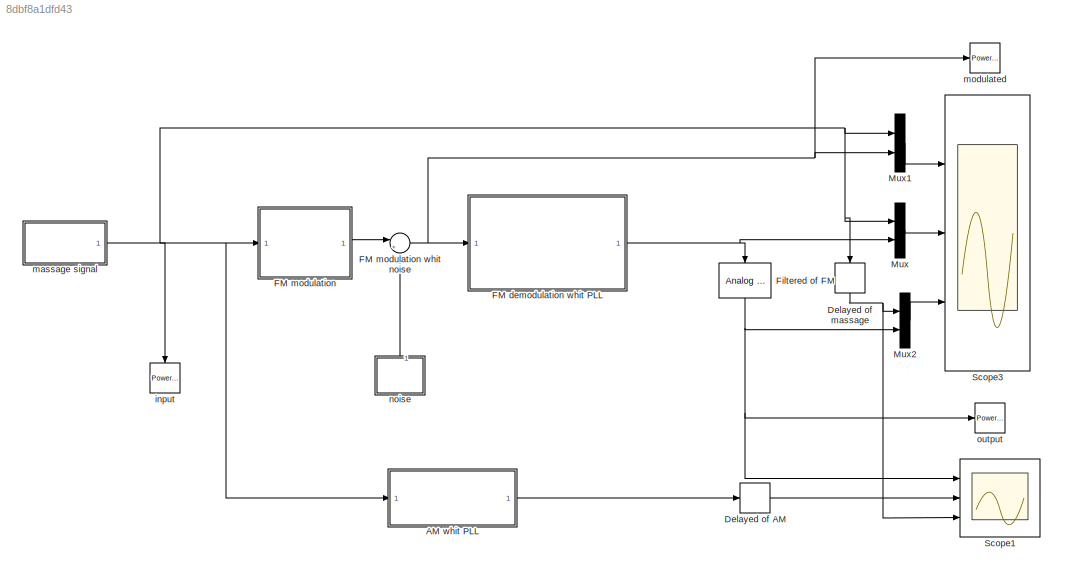
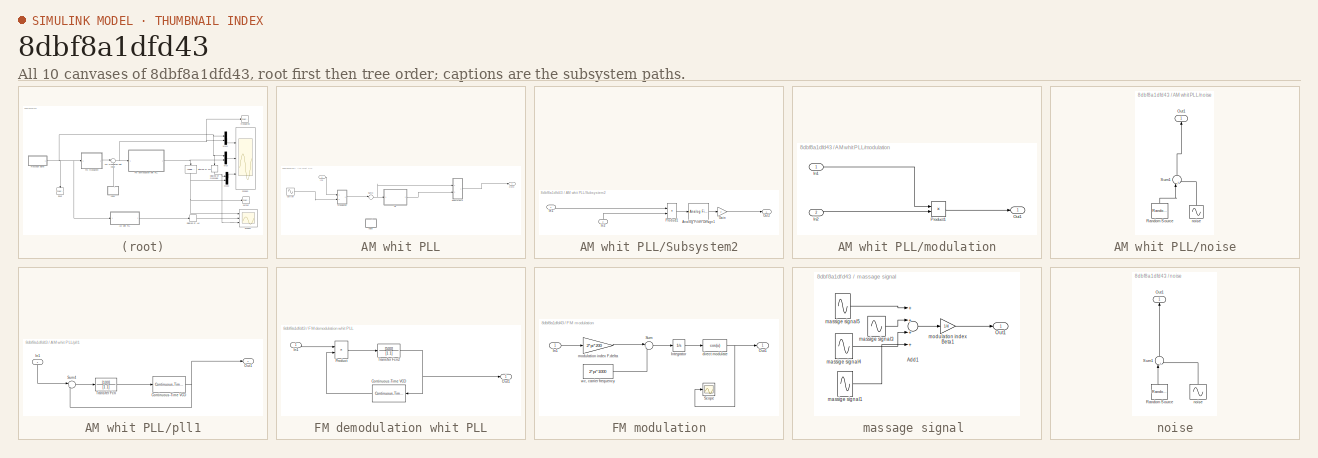
[diagram: thumbnail index - all 10 canvases of the model, root first then tree order]
MODEL slx_8dbf8a1dfd43
KIND model
CONFIG AbsTol = auto
CONFIG EnableMultiTasking = on
CONFIG FixedStep = .0002
CONFIG MaxStep = 0.00005
CONFIG MinStep = auto
CONFIG RelTol = 1e-4
CONFIG SampleTimeConstraint = Unconstrained
CONFIG Solver = VariableStepAuto
CONFIG SolverName = VariableStepAuto
CONFIG StartTime = 0.0
CONFIG StopTime = inf
BLOCK [Reference]  Filtered of FM  REF=dsparch4/Analog
Filter Design
  Ports = [1, 1]
  SourceBlock = dsparch4/Analog\nFilter Design
  SourceType = Analog Filter Design
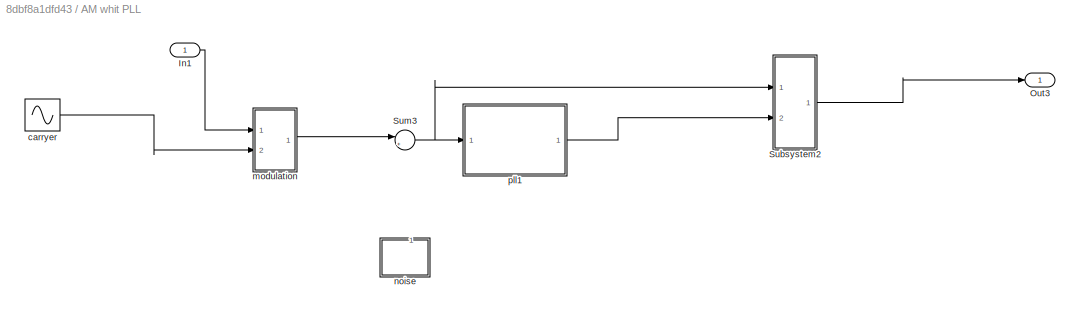
BLOCK [SubSystem] AM whit PLL
  Ports = [1, 1]
  RequestExecContextInheritance = off
  Variant = off
BLOCK [Inport] AM whit PLL/In1
  IconDisplay = Port number
BLOCK [Outport] AM whit PLL/Out3
  IconDisplay = Port number
BLOCK [SubSystem] AM whit PLL/Subsystem2
  Ports = [2, 1]
  RequestExecContextInheritance = off
  Variant = off
BLOCK [Reference] AM whit PLL/Subsystem2/Analog Filter Design1  REF=dsparch4/Analog
Filter Design
  Ports = [1, 1]
  SourceBlock = dsparch4/Analog\nFilter Design
  SourceType = Analog Filter Design
BLOCK [Gain] AM whit PLL/Subsystem2/Gain
  Gain = 2
  OutDataTypeStr = Inherit: Inherit via internal rule
  ParamDataTypeStr = Inherit: Inherit via internal rule
  SaturateOnIntegerOverflow = off
BLOCK [Inport] AM whit PLL/Subsystem2/In1
  IconDisplay = Port number
BLOCK [Inport] AM whit PLL/Subsystem2/In2
  IconDisplay = Port number
  Port = 2
BLOCK [Outport] AM whit PLL/Subsystem2/Out2
  IconDisplay = Port number
BLOCK [Product] AM whit PLL/Subsystem2/Product1
  InputSameDT = off
  OutDataTypeStr = Inherit: Inherit via internal rule
  Ports = [2, 1]
  RndMeth = Floor
  SaturateOnIntegerOverflow = off
BLOCK [Sum] AM whit PLL/Sum3
  IconShape = round
  InputSameDT = off
  Inputs = |++
  OutDataTypeStr = Inherit: Inherit via internal rule
  Ports = [2, 1]
  SaturateOnIntegerOverflow = off
BLOCK [Sin] AM whit PLL/carryer
  Frequency = 1000*2*pi
  Ports = [0, 1]
  SampleTime = 0
BLOCK [SubSystem] AM whit PLL/modulation
  Ports = [2, 1]
  RequestExecContextInheritance = off
  Variant = off
BLOCK [Inport] AM whit PLL/modulation/In1
  IconDisplay = Port number
BLOCK [Inport] AM whit PLL/modulation/In2
  IconDisplay = Port number
  Port = 2
BLOCK [Outport] AM whit PLL/modulation/Out1
  IconDisplay = Port number
BLOCK [Product] AM whit PLL/modulation/Product1
  InputSameDT = off
  OutDataTypeStr = Inherit: Inherit via internal rule
  Ports = [2, 1]
  RndMeth = Floor
  SaturateOnIntegerOverflow = off
BLOCK [SubSystem] AM whit PLL/noise
  Ports = [0, 1]
  RequestExecContextInheritance = off
  Variant = off
BLOCK [Outport] AM whit PLL/noise/Out1
  IconDisplay = Port number
BLOCK [Reference] AM whit PLL/noise/Random Source  REF=dspsrcs4/Random
Source
  Ports = [0, 1]
  SourceBlock = dspsrcs4/Random\nSource
  SourceType = Random Source
  UserDataPersistent = on
BLOCK [Sum] AM whit PLL/noise/Sum1
  IconShape = round
  InputSameDT = off
  Inputs = |++
  OutDataTypeStr = Inherit: Inherit via internal rule
  Ports = [2, 1]
  SaturateOnIntegerOverflow = off
BLOCK [Sin] AM whit PLL/noise/noise
  Amplitude = .05
  Frequency = 500.2*2*pi
  Ports = [0, 1]
  SampleTime = 0
BLOCK [SubSystem] AM whit PLL/pll1
  Ports = [1, 1]
  RequestExecContextInheritance = off
  Variant = off
BLOCK [Reference] AM whit PLL/pll1/Continuous-Time VCO  REF=commsynccomp2/Continuous-Time
VCO
  Ports = [1, 1]
  SourceBlock = commsynccomp2/Continuous-Time\nVCO
  SourceType = Continuous-Time VCO
BLOCK [Inport] AM whit PLL/pll1/In1
  IconDisplay = Port number
BLOCK [Outport] AM whit PLL/pll1/Out1
  IconDisplay = Port number
BLOCK [Sum] AM whit PLL/pll1/Sum4
  IconShape = round
  InputSameDT = off
  Inputs = |+-
  OutDataTypeStr = Inherit: Inherit via internal rule
  Ports = [2, 1]
  SaturateOnIntegerOverflow = off
BLOCK [TransferFcn] AM whit PLL/pll1/Transfer Fcn
  Denominator = [1 1]
  Numerator = [100]
BLOCK [TransportDelay] Delayed of AM 
  DelayTime = (2*pi/10)/22
  Ports = [1, 1]
BLOCK [TransportDelay] Delayed of massage
  DelayTime = (2*pi/10)/22
  Ports = [1, 1]
BLOCK [SubSystem] FM demodulation whit PLL
  Ports = [1, 1]
  RequestExecContextInheritance = off
  Variant = off
BLOCK [Reference] FM demodulation whit PLL/Continuous-Time VCO  REF=commsynccomp2/Continuous-Time
VCO
  Ports = [1, 1]
  SourceBlock = commsynccomp2/Continuous-Time\nVCO
  SourceType = Continuous-Time VCO
BLOCK [Inport] FM demodulation whit PLL/In1
  IconDisplay = Port number
BLOCK [Outport] FM demodulation whit PLL/Out1
  IconDisplay = Port number
BLOCK [Product] FM demodulation whit PLL/Product
  InputSameDT = off
  OutDataTypeStr = Inherit: Inherit via internal rule
  Ports = [2, 1]
  RndMeth = Floor
  SaturateOnIntegerOverflow = off
BLOCK [TransferFcn] FM demodulation whit PLL/Transfer Fcn2
  Denominator = [1 1]
  Numerator = [500]
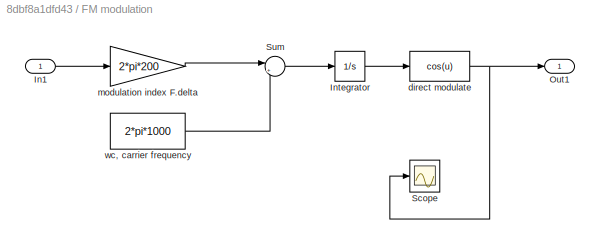
BLOCK [SubSystem] FM modulation
  Ports = [1, 1]
  RequestExecContextInheritance = off
  Variant = off
BLOCK [Sum] FM modulation whit noise
  IconShape = round
  InputSameDT = off
  Inputs = |++
  OutDataTypeStr = Inherit: Inherit via internal rule
  Ports = [2, 1]
  SaturateOnIntegerOverflow = off
BLOCK [Inport] FM modulation/In1
  IconDisplay = Port number
BLOCK [Integrator] FM modulation/Integrator
  IgnoreLimit = on
  Ports = [1, 1]
BLOCK [Outport] FM modulation/Out1
  IconDisplay = Port number
BLOCK [Scope] FM modulation/Scope
  NumInputPorts = 1
  Ports = [1]
  ScopeSpecificationString = Simulink.scopes.TimeScopeBlockCfg('CurrentConfiguration', extmgr.ConfigurationSet(extmgr.Configuration('Core','General UI',true),extmgr.Configuration('Core','Source UI',true),extmgr.Configuration('Sources','WiredSimulink',true,'DataLoggingVariableName','ScopeData1'),extmgr.Configuration('Visuals','Time Domain',true,'SerializedDisplays',{struct('MinYLimReal','-1.24999','MaxYLimReal','1.25','YLabelR...<+1411ch>
BLOCK [Sum] FM modulation/Sum
  IconShape = round
  InputSameDT = off
  Inputs = |++
  OutDataTypeStr = Inherit: Inherit via internal rule
  Ports = [2, 1]
  SaturateOnIntegerOverflow = off
BLOCK [Fcn] FM modulation/direct modulate
  Expr = cos(u)
BLOCK [Gain] FM modulation/modulation index F.delta
  Gain = 2*pi*200
  OutDataTypeStr = Inherit: Inherit via internal rule
  ParamDataTypeStr = Inherit: Inherit via internal rule
  SaturateOnIntegerOverflow = off
BLOCK [Constant] FM modulation/wc, carrier frequency
  Value = 2*pi*1000
BLOCK [Mux] Mux
  DisplayOption = bar
  Inputs = 2
  Ports = [2, 1]
BLOCK [Mux] Mux1
  DisplayOption = bar
  Inputs = 2
  Ports = [2, 1]
BLOCK [Mux] Mux2
  DisplayOption = bar
  Inputs = 2
  Ports = [2, 1]
BLOCK [Scope] Scope1
  NumInputPorts = 3
  Ports = [3]
  ScopeSpecificationString = Simulink.scopes.TimeScopeBlockCfg('CurrentConfiguration', extmgr.ConfigurationSet(extmgr.Configuration('Core','General UI',true,'FigureColor',[0 0 0]),extmgr.Configuration('Core','Source UI',true),extmgr.Configuration('Sources','WiredSimulink',true,'DataLoggingVariableName','ScopeData1'),extmgr.Configuration('Visuals','Time Domain',true,'SerializedDisplays',{struct('MinYLimReal','-1.09818','MaxYLi...<+1854ch>
BLOCK [Scope] Scope3
  NumInputPorts = 3
  Ports = [3]
  ScopeSpecificationString = Simulink.scopes.TimeScopeBlockCfg('CurrentConfiguration', extmgr.ConfigurationSet(extmgr.Configuration('Core','General UI',true,'FigureColor',[0 0 0]),extmgr.Configuration('Core','Source UI',true),extmgr.Configuration('Sources','WiredSimulink',true,'DataLoggingVariableName','ScopeData4'),extmgr.Configuration('Visuals','Time Domain',true,'SerializedDisplays',{struct('MinYLimReal','-1.47859','MaxYLi...<+3294ch>
BLOCK [Reference] input  REF=simulink_extras/Additional
Sinks/Power Spectral
Density
  Ports = [1]
  SourceBlock = simulink_extras/Additional\nSinks/Power Spectral\nDensity
  SourceType = Power Spectral Density
BLOCK [SubSystem] massage signal 
  Ports = [0, 1]
  RequestExecContextInheritance = off
  Variant = off
BLOCK [Sum] massage signal /Add1
  InputSameDT = off
  Inputs = ++++
  OutDataTypeStr = Inherit: Inherit via internal rule
  Ports = [4, 1]
  SaturateOnIntegerOverflow = off
BLOCK [Outport] massage signal /Out1
  IconDisplay = Port number
BLOCK [Sin] massage signal /massige signal1
  Frequency = 11.33*2*pi
  Ports = [0, 1]
  SampleTime = 0
BLOCK [Sin] massage signal /massige signal3
  Frequency = 13.333*2*pi
  Ports = [0, 1]
  SampleTime = 0
BLOCK [Sin] massage signal /massige signal4
  Frequency = 10.54*2*pi
  Ports = [0, 1]
  SampleTime = 0
BLOCK [Sin] massage signal /massige signal5
  Frequency = 8.37*2*pi
  Ports = [0, 1]
  SampleTime = 0
BLOCK [Gain] massage signal /modulation index Beta1
  Gain = 1/4
  OutDataTypeStr = Inherit: Inherit via internal rule
  ParamDataTypeStr = Inherit: Inherit via internal rule
  SaturateOnIntegerOverflow = off
BLOCK [Reference] modulated  REF=simulink_extras/Additional
Sinks/Power Spectral
Density
  Ports = [1]
  SourceBlock = simulink_extras/Additional\nSinks/Power Spectral\nDensity
  SourceType = Power Spectral Density
BLOCK [SubSystem] noise
  Ports = [0, 1]
  RequestExecContextInheritance = off
  Variant = off
BLOCK [Outport] noise/Out1
  IconDisplay = Port number
BLOCK [Reference] noise/Random Source  REF=dspsrcs4/Random
Source
  Ports = [0, 1]
  SourceBlock = dspsrcs4/Random\nSource
  SourceType = Random Source
  UserDataPersistent = on
BLOCK [Sum] noise/Sum1
  IconShape = round
  InputSameDT = off
  Inputs = |++
  OutDataTypeStr = Inherit: Inherit via internal rule
  Ports = [2, 1]
  SaturateOnIntegerOverflow = off
BLOCK [Sin] noise/noise
  Amplitude = .1
  Frequency = 500.2*2*pi
  Ports = [0, 1]
  SampleTime = 0
BLOCK [Reference] output  REF=simulink_extras/Additional
Sinks/Power Spectral
Density
  Ports = [1]
  SourceBlock = simulink_extras/Additional\nSinks/Power Spectral\nDensity
  SourceType = Power Spectral Density
NET  Filtered of FM:1 -> Mux2:2, Scope1:1, output:1
LINE AM whit PLL/In1:1 -> AM whit PLL/modulation:1
LINE AM whit PLL/Subsystem2/Analog Filter Design1:1 -> AM whit PLL/Subsystem2/Gain:1
LINE AM whit PLL/Subsystem2/Gain:1 -> AM whit PLL/Subsystem2/Out2:1
LINE AM whit PLL/Subsystem2/In1:1 -> AM whit PLL/Subsystem2/Product1:1
LINE AM whit PLL/Subsystem2/In2:1 -> AM whit PLL/Subsystem2/Product1:2
LINE AM whit PLL/Subsystem2/Product1:1 -> AM whit PLL/Subsystem2/Analog Filter Design1:1
LINE AM whit PLL/Subsystem2:1 -> AM whit PLL/Out3:1
NET AM whit PLL/Sum3:1 -> AM whit PLL/Subsystem2:1, AM whit PLL/pll1:1
LINE AM whit PLL/carryer:1 -> AM whit PLL/modulation:2
LINE AM whit PLL/modulation/In1:1 -> AM whit PLL/modulation/Product1:1
LINE AM whit PLL/modulation/In2:1 -> AM whit PLL/modulation/Product1:2
LINE AM whit PLL/modulation/Product1:1 -> AM whit PLL/modulation/Out1:1
LINE AM whit PLL/modulation:1 -> AM whit PLL/Sum3:1
LINE AM whit PLL/noise/Random Source:1 -> AM whit PLL/noise/Sum1:1
LINE AM whit PLL/noise/Sum1:1 -> AM whit PLL/noise/Out1:1
LINE AM whit PLL/noise/noise:1 -> AM whit PLL/noise/Sum1:2
NET AM whit PLL/pll1/Continuous-Time VCO:1 -> AM whit PLL/pll1/Out1:1, AM whit PLL/pll1/Sum4:2
LINE AM whit PLL/pll1/In1:1 -> AM whit PLL/pll1/Sum4:1
LINE AM whit PLL/pll1/Sum4:1 -> AM whit PLL/pll1/Transfer Fcn:1
LINE AM whit PLL/pll1/Transfer Fcn:1 -> AM whit PLL/pll1/Continuous-Time VCO:1
LINE AM whit PLL/pll1:1 -> AM whit PLL/Subsystem2:2
LINE AM whit PLL:1 -> Delayed of AM :1
LINE Delayed of AM :1 -> Scope1:2
NET Delayed of massage:1 -> Mux2:1, Scope1:3
LINE FM demodulation whit PLL/Continuous-Time VCO:1 -> FM demodulation whit PLL/Product:2
LINE FM demodulation whit PLL/In1:1 -> FM demodulation whit PLL/Product:1
LINE FM demodulation whit PLL/Product:1 -> FM demodulation whit PLL/Transfer Fcn2:1
NET FM demodulation whit PLL/Transfer Fcn2:1 -> FM demodulation whit PLL/Continuous-Time VCO:1, FM demodulation whit PLL/Out1:1
NET FM demodulation whit PLL:1 ->  Filtered of FM:1, Mux:2
NET FM modulation whit noise:1 -> FM demodulation whit PLL:1, Mux1:2, modulated:1
LINE FM modulation/In1:1 -> FM modulation/modulation index F.delta:1
LINE FM modulation/Integrator:1 -> FM modulation/direct modulate:1
LINE FM modulation/Sum:1 -> FM modulation/Integrator:1
NET FM modulation/direct modulate:1 -> FM modulation/Out1:1, FM modulation/Scope:1
LINE FM modulation/modulation index F.delta:1 -> FM modulation/Sum:1
LINE FM modulation/wc, carrier frequency:1 -> FM modulation/Sum:2
LINE FM modulation:1 -> FM modulation whit noise:1
LINE Mux1:1 -> Scope3:1
LINE Mux2:1 -> Scope3:3
LINE Mux:1 -> Scope3:2
LINE massage signal /Add1:1 -> massage signal /modulation index Beta1:1
LINE massage signal /massige signal1:1 -> massage signal /Add1:4
LINE massage signal /massige signal3:1 -> massage signal /Add1:2
LINE massage signal /massige signal4:1 -> massage signal /Add1:3
LINE massage signal /massige signal5:1 -> massage signal /Add1:1
LINE massage signal /modulation index Beta1:1 -> massage signal /Out1:1
NET massage signal :1 -> AM whit PLL:1, Delayed of massage:1, FM modulation:1, Mux1:1, Mux:1, input:1
LINE noise/Random Source:1 -> noise/Sum1:1
LINE noise/Sum1:1 -> noise/Out1:1
LINE noise/noise:1 -> noise/Sum1:2
LINE noise:1 -> FM modulation whit noise:2
note: NET lines group one-source signal fan-out (src -> all destinations, sorted); 1:1 wires keep LINE
